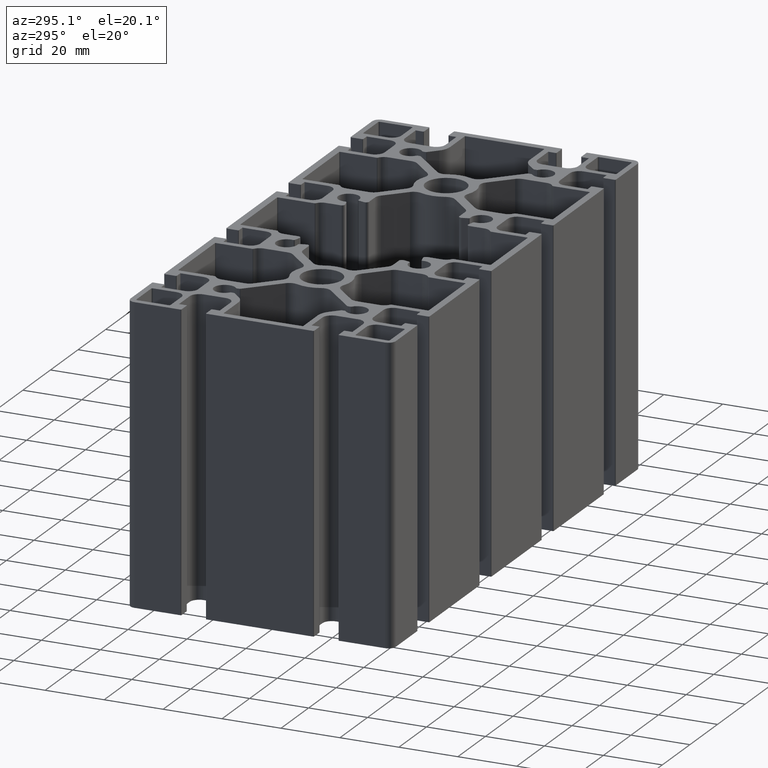
[diagram: clean part render]
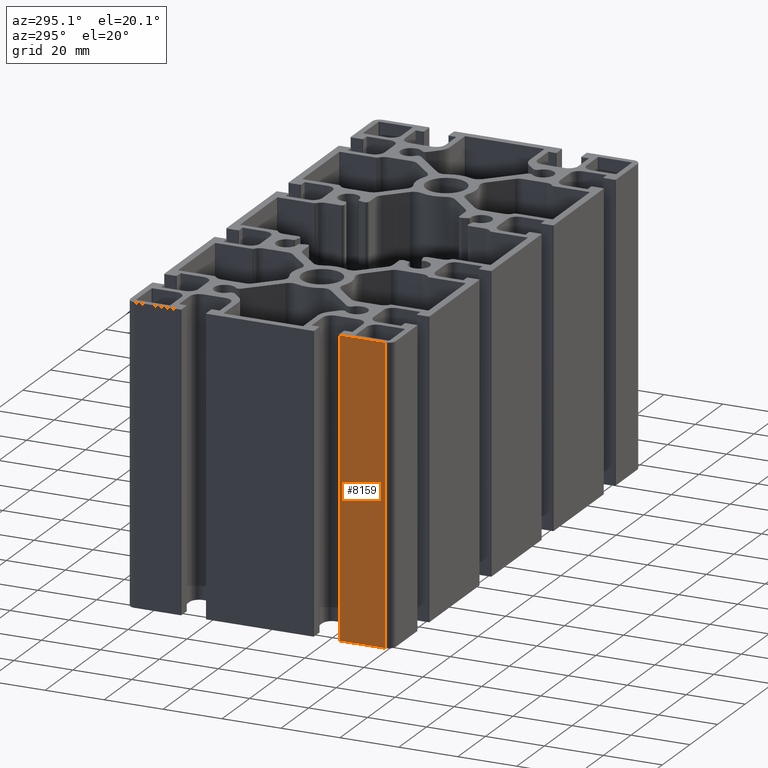
[diagram: same view with one face highlighted and labeled with its STEP entity id]
A machine part, auxiliary view. The second image highlights one B-rep face of the part: STEP entity #8159.
In plain terms, the highlighted planar face has unit normal (-1, 0, 0).
Its self-contained STEP definition (entity closure, byte-faithful):
#1085=FACE_OUTER_BOUND('',#1495,.T.);
#1495=EDGE_LOOP('',(#6729,#6730,#6731,#6732));
#1671=LINE('',#11938,#2459);
#2312=LINE('',#13883,#3100);
#2313=LINE('',#13885,#3101);
#2314=LINE('',#13886,#3102);
#2459=VECTOR('',#9489,100.);
#3100=VECTOR('',#11432,15.55);
#3101=VECTOR('',#11433,100.);
#3102=VECTOR('',#11434,15.55);
#3261=VERTEX_POINT('',#11934);
#3262=VERTEX_POINT('',#11936);
#3915=VERTEX_POINT('',#13882);
#3916=VERTEX_POINT('',#13884);
#4151=EDGE_CURVE('',#3261,#3262,#1671,.T.);
#5120=EDGE_CURVE('',#3915,#3262,#2312,.T.);
#5121=EDGE_CURVE('',#3915,#3916,#2313,.T.);
#5122=EDGE_CURVE('',#3916,#3261,#2314,.T.);
#6729=ORIENTED_EDGE('',*,*,#4151,.T.);
#6730=ORIENTED_EDGE('',*,*,#5120,.F.);
#6731=ORIENTED_EDGE('',*,*,#5121,.T.);
#6732=ORIENTED_EDGE('',*,*,#5122,.T.);
#7755=PLANE('',#8989);
#8159=ADVANCED_FACE('',(#1085),#7755,.T.);
#8989=AXIS2_PLACEMENT_3D('',#13881,#11430,#11431);
#9489=DIRECTION('',(0.,0.,-1.));
#11430=DIRECTION('center_axis',(-1.,0.,0.));
#11431=DIRECTION('ref_axis',(0.,-1.,0.));
#11432=DIRECTION('',(0.,1.,0.));
#11433=DIRECTION('',(0.,0.,1.));
#11434=DIRECTION('',(0.,1.,0.));
#11934=CARTESIAN_POINT('',(-90.,-26.95,100.));
#11936=CARTESIAN_POINT('',(-90.,-26.95,0.));
#11938=CARTESIAN_POINT('',(-90.,-26.95,0.));
#13881=CARTESIAN_POINT('Origin',(-90.,42.5,0.));
#13882=CARTESIAN_POINT('',(-90.,-42.5,0.));
#13883=CARTESIAN_POINT('',(-90.,21.25,0.));
#13884=CARTESIAN_POINT('',(-90.,-42.5,100.));
#13885=CARTESIAN_POINT('',(-90.,-42.5,0.));
#13886=CARTESIAN_POINT('',(-90.,21.25,100.));